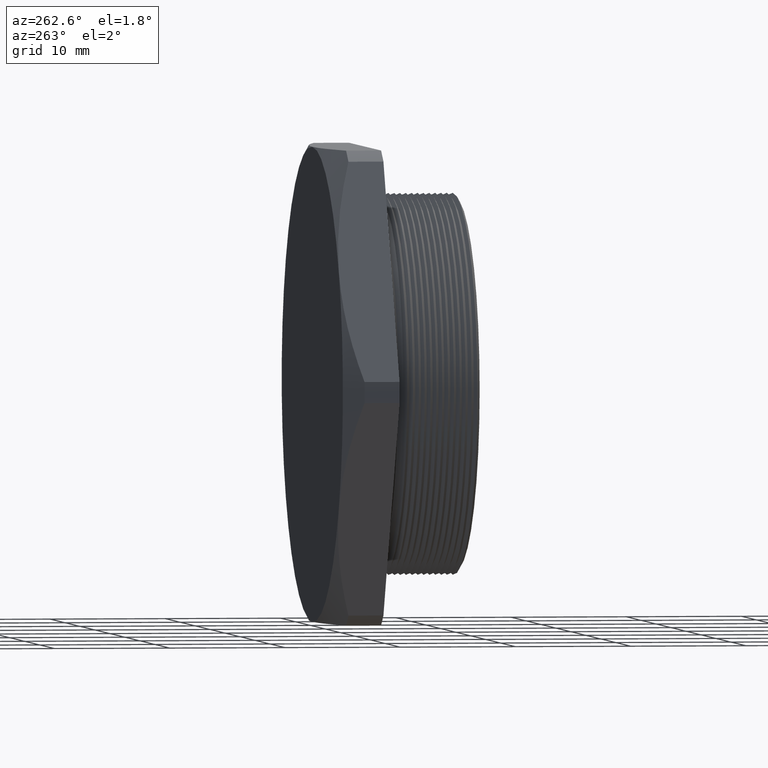
[diagram: clean part render]
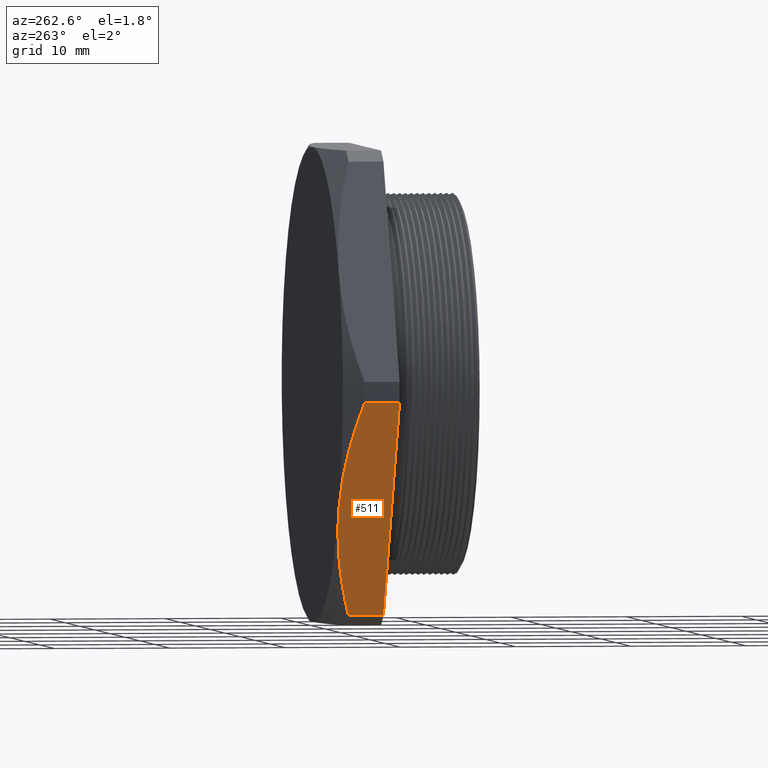
[diagram: same view with one face highlighted and labeled with its STEP entity id]
A machine part, auxiliary view. The second image highlights one B-rep face of the part: STEP entity #511.
In plain terms, the highlighted planar face has unit normal (-0.866, 0, -0.5).
Its self-contained STEP definition (entity closure, byte-faithful):
#511 = ADVANCED_FACE ( 'NONE', ( #1574 ), #1573, .T. ) ;
#512 = EDGE_LOOP ( 'NONE', ( #513, #514, #565, #567, #568 ) ) ;
#513 = ORIENTED_EDGE ( 'NONE', *, *, #596, .T. ) ;
#514 = ORIENTED_EDGE ( 'NONE', *, *, #515, .T. ) ;
#515 = EDGE_CURVE ( 'NONE', #593, #516, #1568, .T. ) ;
#516 = VERTEX_POINT ( 'NONE', #1567 ) ;
#563 = EDGE_CURVE ( 'NONE', #578, #584, #1665, .T. ) ;
#565 = ORIENTED_EDGE ( 'NONE', *, *, #566, .T. ) ;
#566 = EDGE_CURVE ( 'NONE', #516, #578, #1655, .T. ) ;
#567 = ORIENTED_EDGE ( 'NONE', *, *, #563, .T. ) ;
#568 = ORIENTED_EDGE ( 'NONE', *, *, #569, .T. ) ;
#569 = EDGE_CURVE ( 'NONE', #584, #597, #1713, .T. ) ;
#578 = VERTEX_POINT ( 'NONE', #1682 ) ;
#584 = VERTEX_POINT ( 'NONE', #1736 ) ;
#593 = VERTEX_POINT ( 'NONE', #1715 ) ;
#596 = EDGE_CURVE ( 'NONE', #597, #593, #1769, .T. ) ;
#597 = VERTEX_POINT ( 'NONE', #1765 ) ;
#1561 = CARTESIAN_POINT ( 'NONE',  ( -0.6971504500464731400, 0.4899999999999999900, -0.4024999999999997500 ) ) ;
#1562 = CARTESIAN_POINT ( 'NONE',  ( -0.7330570066494549500, 0.4899999999999998800, -0.3403080196387879800 ) ) ;
#1563 = CARTESIAN_POINT ( 'NONE',  ( -0.7686247535891291800, 0.4843740782308452700, -0.2787028748285190800 ) ) ;
#1564 = CARTESIAN_POINT ( 'NONE',  ( -0.8391800721173916500, 0.4634884447181006300, -0.1564974783933636700 ) ) ;
#1565 = CARTESIAN_POINT ( 'NONE',  ( -0.8741708624443373900, 0.4482821800043976200, -0.09589165175010357100 ) ) ;
#1566 = CARTESIAN_POINT ( 'NONE',  ( -0.9089511361289313000, 0.4295802943293059500, -0.03565045062723597200 ) ) ;
#1567 = CARTESIAN_POINT ( 'NONE',  ( -0.6971504500464731400, 0.4899999999999999900, -0.4024999999999997500 ) ) ;
#1568 = B_SPLINE_CURVE_WITH_KNOTS ( 'NONE', 3,
 ( #1566, #1565, #1564, #1563, #1562, #1561 ),
 .UNSPECIFIED., .F., .F.,
 ( 4, 2, 4 ),
 ( 2.367078556280477500E-007, 0.005433129745490940800, 0.01086602278312625300 ),
 .UNSPECIFIED. ) ;
#1569 = DIRECTION ( 'NONE',  ( -0.4999999999999998300, 0.0000000000000000000, 0.8660254037844386000 ) ) ;
#1570 = DIRECTION ( 'NONE',  ( -0.8660254037844387100, 0.0000000000000000000, -0.4999999999999998900 ) ) ;
#1571 = CARTESIAN_POINT ( 'NONE',  ( -0.4647669666976487800, -1.365923996832131600E-016, -0.8050000000000000500 ) ) ;
#1572 = AXIS2_PLACEMENT_3D ( 'NONE', #1571, #1570, #1569 ) ;
#1573 = PLANE ( 'NONE',  #1572 ) ;
#1574 = FACE_OUTER_BOUND ( 'NONE', #512, .T. ) ;
#1652 = CARTESIAN_POINT ( 'NONE',  ( -0.6613187935565420000, 0.4886098759984572300, -0.4645622495599157600 ) ) ;
#1653 = CARTESIAN_POINT ( 'NONE',  ( -0.6793071313445975300, 0.4899999999999999900, -0.4334055345672928600 ) ) ;
#1654 = CARTESIAN_POINT ( 'NONE',  ( -0.6971504500464731400, 0.4899999999999999900, -0.4024999999999997500 ) ) ;
#1655 = B_SPLINE_CURVE_WITH_KNOTS ( 'NONE', 3,
 ( #1654, #1653, #1652, #1711, #1710, #1709, #1708, #1707 ),
 .UNSPECIFIED., .F., .F.,
 ( 4, 2, 2, 4 ),
 ( 0.01086602278312625300, 0.01356583170703961000, 0.01626564063095296800, 0.02166525847877969300 ),
 .UNSPECIFIED. ) ;
#1662 = DIRECTION ( 'NONE',  ( 0.0000000000000000000, -1.000000000000000000, 0.0000000000000000000 ) ) ;
#1663 = VECTOR ( 'NONE', #1662, 39.37007874015748100 ) ;
#1664 = CARTESIAN_POINT ( 'NONE',  ( -0.4853497639640150200, 0.0000000000000000000, -0.7693495493727639000 ) ) ;
#1665 = LINE ( 'NONE', #1664, #1663 ) ;
#1682 = CARTESIAN_POINT ( 'NONE',  ( -0.4853497639640150200, 0.4295802943293059500, -0.7693495493727640100 ) ) ;
#1705 = DIRECTION ( 'NONE',  ( -0.4999999999999998300, 0.0000000000000000000, 0.8660254037844386000 ) ) ;
#1706 = VECTOR ( 'NONE', #1705, 39.37007874015748900 ) ;
#1707 = CARTESIAN_POINT ( 'NONE',  ( -0.4853497639640150200, 0.4295802943293059500, -0.7693495493727640100 ) ) ;
#1708 = CARTESIAN_POINT ( 'NONE',  ( -0.5199832553568258800, 0.4482032529187408000, -0.7093625826369158700 ) ) ;
#1709 = CARTESIAN_POINT ( 'NONE',  ( -0.5548979932340358800, 0.4634044384138372700, -0.6488884827006383700 ) ) ;
#1710 = CARTESIAN_POINT ( 'NONE',  ( -0.6078535885384339600, 0.4791072293914299100, -0.5571667010883656300 ) ) ;
#1711 = CARTESIAN_POINT ( 'NONE',  ( -0.6256028122239919400, 0.4831569840806349000, -0.5264241438700740800 ) ) ;
#1712 = CARTESIAN_POINT ( 'NONE',  ( -0.8546504500464730000, 0.3100000000000000000, -0.1297019978079017900 ) ) ;
#1713 = LINE ( 'NONE', #1712, #1706 ) ;
#1715 = CARTESIAN_POINT ( 'NONE',  ( -0.9089511361289313000, 0.4295802943293059500, -0.03565045062723597200 ) ) ;
#1736 = CARTESIAN_POINT ( 'NONE',  ( -0.4853497639640147500, 0.3099999999999998900, -0.7693495493727640100 ) ) ;
#1765 = CARTESIAN_POINT ( 'NONE',  ( -0.9089511361289313000, 0.3099999999999998900, -0.03565045062723572900 ) ) ;
#1766 = DIRECTION ( 'NONE',  ( 0.0000000000000000000, 1.000000000000000000, 0.0000000000000000000 ) ) ;
#1767 = VECTOR ( 'NONE', #1766, 39.37007874015748100 ) ;
#1768 = CARTESIAN_POINT ( 'NONE',  ( -0.9089511361289313000, 0.0000000000000000000, -0.03565045062723599900 ) ) ;
#1769 = LINE ( 'NONE', #1768, #1767 ) ;